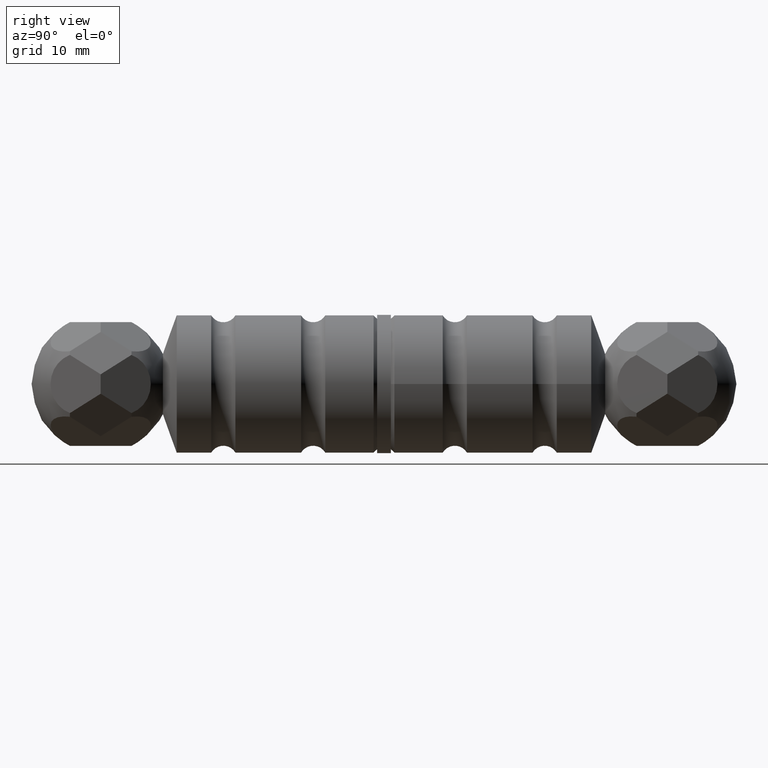
[diagram: clean part render]
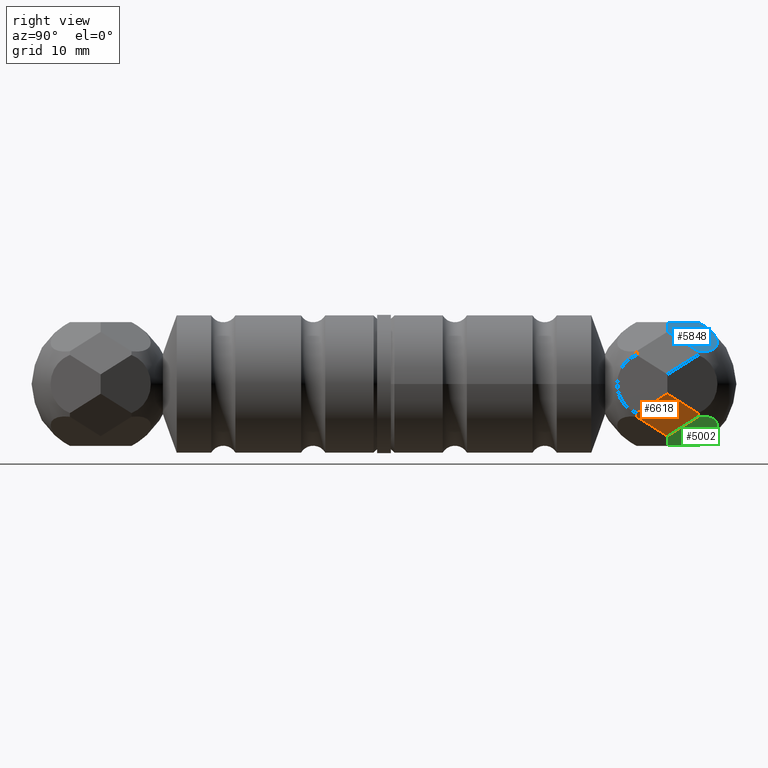
[diagram: same view with three faces highlighted in distinct colors, each labeled with its STEP entity id]
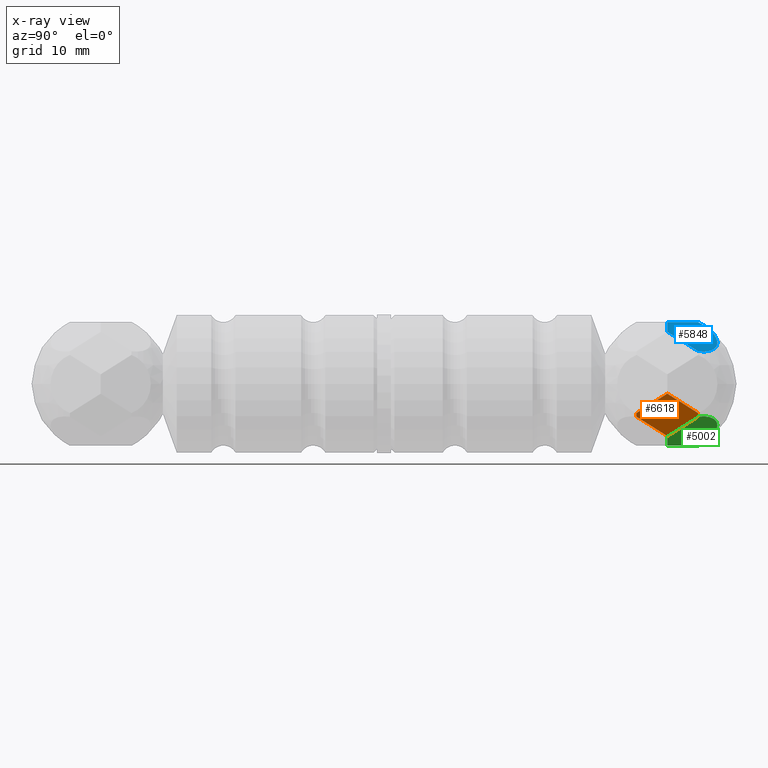
[diagram: x-ray of the same camera — body ghosted, the three highlighted faces saturated]
A machine part, right view with three faces highlighted in distinct colors.
The next image is the same camera in x-ray (body ghosted, the three faces saturated) — at least one of them is partly hidden behind the body in this view.
Their STEP definitions:

[orange] entity #6618 — the highlighted planar face has unit normal (-0.866, 0, 0.5).
#43 = CARTESIAN_POINT ( 'NONE',  ( 9.524391063659415124, 40.00000000000000000, -1.403270766586872442 ) ) ;
#53 = DIRECTION ( 'NONE',  ( 0.8660254037844417052, -0.000000000000000000, -0.4999999999999948930 ) ) ;
#156 = CARTESIAN_POINT ( 'NONE',  ( 7.750927363870755649, 40.00000000000000000, -4.474999999999955236 ) ) ;
#198 = CARTESIAN_POINT ( 'NONE',  ( 6.591722971546124299, 41.68766357694725144, -6.482800903863249253 ) ) ;
#531 = EDGE_CURVE ( 'NONE', #6023, #12419, #3725, .T. ) ;
#848 = CARTESIAN_POINT ( 'NONE',  ( 7.750927363870755649, 40.00000000000000000, -4.474999999999952571 ) ) ;
#917 = VECTOR ( 'NONE', #11032, 1000.000000000000000 ) ;
#942 = EDGE_LOOP ( 'NONE', ( #11804, #12537, #6057, #8334, #7795, #6162 ) ) ;
#1058 = VECTOR ( 'NONE', #9085, 1000.000000000000227 ) ;
#1223 = LINE ( 'NONE', #11908, #917 ) ;
#1749 = CARTESIAN_POINT ( 'NONE',  ( 7.597147870152589633, 35.54995421717404014, -4.741353896282040736 ) ) ;
#1812 = PLANE ( 'NONE',  #10108 ) ;
#2074 = EDGE_CURVE ( 'NONE', #12419, #8787, #6763, .T. ) ;
#2395 = FACE_OUTER_BOUND ( 'NONE', #942, .T. ) ;
#2433 = CARTESIAN_POINT ( 'NONE',  ( 5.977463664082093509, 40.00000000000000000, -7.546729233413035587 ) ) ;
#2804 = LINE ( 'NONE', #7555, #8355 ) ;
#3001 = VERTEX_POINT ( 'NONE', #43 ) ;
#3725 = LINE ( 'NONE', #198, #1058 ) ;
#3757 = VECTOR ( 'NONE', #6592, 1000.000000000000114 ) ;
#3821 = DIRECTION ( 'NONE',  ( 0.4999999999999948375, 0.000000000000000000, 0.8660254037844415942 ) ) ;
#3844 = CARTESIAN_POINT ( 'NONE',  ( 7.904706857588922553, 35.54995421717404014, -4.208646103717867959 ) ) ;
#4537 = VERTEX_POINT ( 'NONE', #1749 ) ;
#4601 = CARTESIAN_POINT ( 'NONE',  ( 7.904706857588920776, 44.45004578282597407, -4.208646103717868847 ) ) ;
#4667 = EDGE_CURVE ( 'NONE', #5342, #4537, #11847, .T. ) ;
#5342 = VERTEX_POINT ( 'NONE', #3844 ) ;
#6023 = VERTEX_POINT ( 'NONE', #2433 ) ;
#6057 = ORIENTED_EDGE ( 'NONE', *, *, #2074, .T. ) ;
#6072 = AXIS2_PLACEMENT_3D ( 'NONE', #156, #6141, #11071 ) ;
#6141 = DIRECTION ( 'NONE',  ( 0.8660254037844417052, -0.000000000000000000, -0.4999999999999948930 ) ) ;
#6162 = ORIENTED_EDGE ( 'NONE', *, *, #4667, .T. ) ;
#6592 = DIRECTION ( 'NONE',  ( 0.2942623679600522846, -0.8084792113654895029, 0.5096773720623456461 ) ) ;
#6618 = ADVANCED_FACE ( 'NONE', ( #2395 ), #1812, .F. ) ;
#6763 = CIRCLE ( 'NONE', #6072, 4.460661385938187173 ) ;
#6982 = LINE ( 'NONE', #12416, #3757 ) ;
#7555 = CARTESIAN_POINT ( 'NONE',  ( 8.910131756195381669, 38.31233642305274145, -2.467199096136667436 ) ) ;
#7656 = DIRECTION ( 'NONE',  ( -0.8660254037844415942, 0.000000000000000000, 0.4999999999999948375 ) ) ;
#7795 = ORIENTED_EDGE ( 'NONE', *, *, #12695, .F. ) ;
#8334 = ORIENTED_EDGE ( 'NONE', *, *, #11864, .T. ) ;
#8355 = VECTOR ( 'NONE', #10663, 1000.000000000000114 ) ;
#8787 = VERTEX_POINT ( 'NONE', #4601 ) ;
#8850 = CARTESIAN_POINT ( 'NONE',  ( 7.597147870152588744, 44.45004578282595986, -4.741353896282043401 ) ) ;
#8965 = EDGE_CURVE ( 'NONE', #6023, #4537, #6982, .T. ) ;
#9085 = DIRECTION ( 'NONE',  ( 0.2942623679600525066, 0.8084792113654891699, 0.5096773720623460902 ) ) ;
#9917 = CARTESIAN_POINT ( 'NONE',  ( 7.750927363870755649, 40.00000000000000000, -4.474999999999955236 ) ) ;
#10108 = AXIS2_PLACEMENT_3D ( 'NONE', #848, #7656, #3821 ) ;
#10663 = DIRECTION ( 'NONE',  ( 0.2942623679600523956, 0.8084792113654895029, 0.5096773720623457571 ) ) ;
#11032 = DIRECTION ( 'NONE',  ( 0.2942623679600525621, -0.8084792113654891699, 0.5096773720623462012 ) ) ;
#11071 = DIRECTION ( 'NONE',  ( 0.4999999999999947264, -1.555575127442184794E-14, 0.8660254037844415942 ) ) ;
#11526 = AXIS2_PLACEMENT_3D ( 'NONE', #9917, #53, #11892 ) ;
#11804 = ORIENTED_EDGE ( 'NONE', *, *, #8965, .F. ) ;
#11847 = CIRCLE ( 'NONE', #11526, 4.460661385938187173 ) ;
#11864 = EDGE_CURVE ( 'NONE', #8787, #3001, #1223, .T. ) ;
#11892 = DIRECTION ( 'NONE',  ( 0.4999999999999947264, 0.000000000000000000, 0.8660254037844415942 ) ) ;
#11908 = CARTESIAN_POINT ( 'NONE',  ( 8.910131756195385222, 41.68766357694725144, -2.467199096136659886 ) ) ;
#12416 = CARTESIAN_POINT ( 'NONE',  ( 6.591722971546128740, 38.31233642305274145, -6.482800903863241260 ) ) ;
#12419 = VERTEX_POINT ( 'NONE', #8850 ) ;
#12537 = ORIENTED_EDGE ( 'NONE', *, *, #531, .T. ) ;
#12695 = EDGE_CURVE ( 'NONE', #5342, #3001, #2804, .T. ) ;

[blue] entity #5848 — the highlighted planar face has unit normal (0.4698, 0.342, 0.8138).
#617 = VERTEX_POINT ( 'NONE', #7230 ) ;
#695 = AXIS2_PLACEMENT_3D ( 'NONE', #3350, #12236, #10260 ) ;
#702 = EDGE_CURVE ( 'NONE', #617, #4831, #11272, .T. ) ;
#773 = CARTESIAN_POINT ( 'NONE',  ( 4.762195531829688022, 40.00000000000000000, 8.248364616706552965 ) ) ;
#944 = CARTESIAN_POINT ( 'NONE',  ( 4.205124478016923462, 43.06108028276472766, 7.283489248076904232 ) ) ;
#1033 = CIRCLE ( 'NONE', #695, 4.460661385938191614 ) ;
#1460 = AXIS2_PLACEMENT_3D ( 'NONE', #944, #7949, #4896 ) ;
#2998 = DIRECTION ( 'NONE',  ( -0.5885247359201016826, 0.8084792113654961643, -6.239909953228395179E-15 ) ) ;
#3350 = CARTESIAN_POINT ( 'NONE',  ( 4.205124478016922573, 43.06108028276474187, 7.283489248076903344 ) ) ;
#3551 = EDGE_CURVE ( 'NONE', #4831, #6791, #1033, .T. ) ;
#3599 = LINE ( 'NONE', #7816, #12231 ) ;
#3889 = ORIENTED_EDGE ( 'NONE', *, *, #11387, .F. ) ;
#4510 = EDGE_CURVE ( 'NONE', #617, #8123, #10927, .T. ) ;
#4759 = VECTOR ( 'NONE', #12759, 1000.000000000000114 ) ;
#4831 = VERTEX_POINT ( 'NONE', #12315 ) ;
#4896 = DIRECTION ( 'NONE',  ( -0.1710100716628341622, 0.9396926207859080948, -0.2961981327260250763 ) ) ;
#5311 = ORIENTED_EDGE ( 'NONE', *, *, #4510, .T. ) ;
#5367 = FACE_OUTER_BOUND ( 'NONE', #8994, .T. ) ;
#5848 = ADVANCED_FACE ( 'NONE', ( #5367 ), #6962, .T. ) ;
#6791 = VERTEX_POINT ( 'NONE', #12310 ) ;
#6962 = PLANE ( 'NONE',  #1460 ) ;
#7230 = CARTESIAN_POINT ( 'NONE',  ( 3.546927399577296747, 40.00000000000000000, 8.950000000000041922 ) ) ;
#7816 = CARTESIAN_POINT ( 'NONE',  ( 6.591722971546031928, 41.68766357694725144, 6.482800903863342512 ) ) ;
#7949 = DIRECTION ( 'NONE',  ( 0.4698463103929521045, 0.3420201433256696566, 0.8137976813493744688 ) ) ;
#8123 = VERTEX_POINT ( 'NONE', #8759 ) ;
#8428 = ORIENTED_EDGE ( 'NONE', *, *, #702, .F. ) ;
#8502 = VECTOR ( 'NONE', #2998, 1000.000000000000227 ) ;
#8759 = CARTESIAN_POINT ( 'NONE',  ( 5.977463664081986039, 40.00000000000000000, 7.546729233413119964 ) ) ;
#8821 = CARTESIAN_POINT ( 'NONE',  ( 2.318408784649252929, 41.68766357694725144, 8.950000000000029488 ) ) ;
#8994 = EDGE_LOOP ( 'NONE', ( #8428, #5311, #3889, #9958 ) ) ;
#9958 = ORIENTED_EDGE ( 'NONE', *, *, #3551, .F. ) ;
#10260 = DIRECTION ( 'NONE',  ( 0.8660254037844399289, 0.000000000000000000, -0.4999999999999978906 ) ) ;
#10927 = LINE ( 'NONE', #773, #4759 ) ;
#11272 = LINE ( 'NONE', #8821, #8502 ) ;
#11387 = EDGE_CURVE ( 'NONE', #6791, #8123, #3599, .T. ) ;
#12231 = VECTOR ( 'NONE', #12662, 1000.000000000000114 ) ;
#12236 = DIRECTION ( 'NONE',  ( -0.4698463103929521045, -0.3420201433256697121, -0.8137976813493744688 ) ) ;
#12310 = CARTESIAN_POINT ( 'NONE',  ( 7.597147870152523019, 44.45004578282595986, 4.741353896282152647 ) ) ;
#12315 = CARTESIAN_POINT ( 'NONE',  ( 0.3075589874363669485, 44.45004578282594565, 8.950000000000011724 ) ) ;
#12662 = DIRECTION ( 'NONE',  ( -0.2942623679600598341, -0.8084792113654891699, 0.5096773720623419823 ) ) ;
#12759 = DIRECTION ( 'NONE',  ( 0.8660254037844397068, 8.636002062691929448E-17, -0.4999999999999980016 ) ) ;

[green] entity #5002 — the highlighted planar face has unit normal (0.4698, 0.342, -0.8138).
#198 = CARTESIAN_POINT ( 'NONE',  ( 6.591722971546124299, 41.68766357694725144, -6.482800903863249253 ) ) ;
#531 = EDGE_CURVE ( 'NONE', #6023, #12419, #3725, .T. ) ;
#967 = PLANE ( 'NONE',  #3676 ) ;
#1058 = VECTOR ( 'NONE', #9085, 1000.000000000000227 ) ;
#1450 = CARTESIAN_POINT ( 'NONE',  ( 0.3075589874364967891, 44.45004578282597407, -8.949999999999995737 ) ) ;
#1803 = CARTESIAN_POINT ( 'NONE',  ( 4.205124478017023826, 43.06108028276474187, -7.283489248076843836 ) ) ;
#2109 = CARTESIAN_POINT ( 'NONE',  ( 2.318408784649443444, 41.68766357694725144, -8.949999999999961986 ) ) ;
#2433 = CARTESIAN_POINT ( 'NONE',  ( 5.977463664082093509, 40.00000000000000000, -7.546729233413035587 ) ) ;
#2941 = CARTESIAN_POINT ( 'NONE',  ( 4.205124478017024714, 43.06108028276472766, -7.283489248076845612 ) ) ;
#3418 = VECTOR ( 'NONE', #6036, 1000.000000000000000 ) ;
#3676 = AXIS2_PLACEMENT_3D ( 'NONE', #2941, #9856, #7765 ) ;
#3682 = ORIENTED_EDGE ( 'NONE', *, *, #531, .F. ) ;
#3725 = LINE ( 'NONE', #198, #1058 ) ;
#4117 = ORIENTED_EDGE ( 'NONE', *, *, #12460, .F. ) ;
#4382 = VERTEX_POINT ( 'NONE', #1450 ) ;
#4834 = EDGE_LOOP ( 'NONE', ( #3682, #7170, #4117, #7486 ) ) ;
#5002 = ADVANCED_FACE ( 'NONE', ( #5210 ), #967, .T. ) ;
#5210 = FACE_OUTER_BOUND ( 'NONE', #4834, .T. ) ;
#6023 = VERTEX_POINT ( 'NONE', #2433 ) ;
#6036 = DIRECTION ( 'NONE',  ( 0.5885247359201112305, -0.8084792113654891699, 1.038896002684116417E-14 ) ) ;
#6153 = VECTOR ( 'NONE', #10038, 1000.000000000000000 ) ;
#6697 = DIRECTION ( 'NONE',  ( -0.8660254037844328234, 0.000000000000000000, -0.5000000000000101030 ) ) ;
#6795 = CARTESIAN_POINT ( 'NONE',  ( 3.546927399577516571, 40.00000000000000711, -8.949999999999937117 ) ) ;
#7170 = ORIENTED_EDGE ( 'NONE', *, *, #8562, .T. ) ;
#7486 = ORIENTED_EDGE ( 'NONE', *, *, #8866, .F. ) ;
#7765 = DIRECTION ( 'NONE',  ( -0.1710100716628383255, 0.9396926207859080948, 0.2961981327260226893 ) ) ;
#8167 = LINE ( 'NONE', #11014, #6153 ) ;
#8562 = EDGE_CURVE ( 'NONE', #6023, #12106, #8167, .T. ) ;
#8791 = CIRCLE ( 'NONE', #9289, 4.460661385938193391 ) ;
#8850 = CARTESIAN_POINT ( 'NONE',  ( 7.597147870152588744, 44.45004578282595986, -4.741353896282043401 ) ) ;
#8866 = EDGE_CURVE ( 'NONE', #12419, #4382, #8791, .T. ) ;
#9085 = DIRECTION ( 'NONE',  ( 0.2942623679600525066, 0.8084792113654891699, 0.5096773720623460902 ) ) ;
#9289 = AXIS2_PLACEMENT_3D ( 'NONE', #1803, #10711, #6697 ) ;
#9856 = DIRECTION ( 'NONE',  ( 0.4698463103929635398, 0.3420201433256697121, -0.8137976813493679185 ) ) ;
#10038 = DIRECTION ( 'NONE',  ( -0.8660254037844328234, 5.682315399449257593E-17, -0.5000000000000101030 ) ) ;
#10711 = DIRECTION ( 'NONE',  ( -0.4698463103929635953, -0.3420201433256697676, 0.8137976813493680295 ) ) ;
#11014 = CARTESIAN_POINT ( 'NONE',  ( 4.762195531829802597, 40.00000000000000000, -8.248364616706487240 ) ) ;
#11447 = LINE ( 'NONE', #2109, #3418 ) ;
#12106 = VERTEX_POINT ( 'NONE', #6795 ) ;
#12419 = VERTEX_POINT ( 'NONE', #8850 ) ;
#12460 = EDGE_CURVE ( 'NONE', #4382, #12106, #11447, .T. ) ;